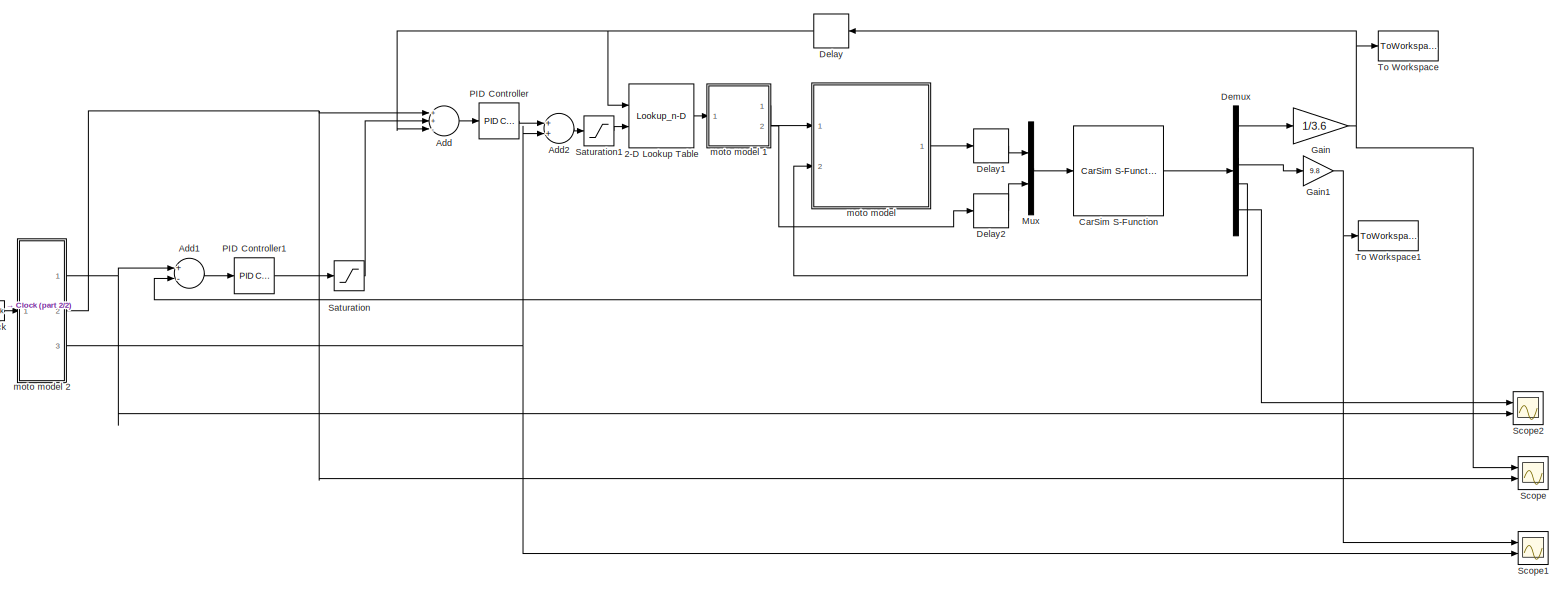
[diagram: root canvas - part 1/2, most of the canvas]
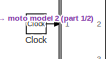
[diagram: root canvas - part 2/2, middle left region]
MODEL slx_35f0e6e5039c
KIND model
CONFIG AbsTol = auto
CONFIG FixedStep = auto
CONFIG MaxStep = auto
CONFIG MinStep = auto
CONFIG RelTol = 1e-3
CONFIG SampleTimeConstraint = Unconstrained
CONFIG Solver = VariableStepAuto
CONFIG SolverMode = Auto
CONFIG SolverName = VariableStepAuto
CONFIG StartTime = 0.0
CONFIG StopTime = 60
BLOCK [Lookup_n-D] 2-D Lookup Table
  BreakpointsForDimension1 = vubr
  BreakpointsForDimension2 = aubr
  InternalRulePriority = Speed
  Ports = [2, 1]
  RndMeth = Simplest
  Table = tablebr
BLOCK [Sum] Add
  InputSameDT = off
  Inputs = ++-
  OutDataTypeStr = Inherit: Inherit via internal rule
  Ports = [3, 1]
  SaturateOnIntegerOverflow = off
BLOCK [Sum] Add1
  InputSameDT = off
  Inputs = +-
  OutDataTypeStr = Inherit: Inherit via internal rule
  Ports = [2, 1]
  SaturateOnIntegerOverflow = off
BLOCK [Sum] Add2
  InputSameDT = off
  OutDataTypeStr = Inherit: Inherit via internal rule
  Ports = [2, 1]
  SaturateOnIntegerOverflow = off
BLOCK [Reference] CarSim S-Function  REF=Solver_SF/CarSim S-Function
  Ports = [1, 1]
  Priority = 1
  SourceBlock = Solver_SF/CarSim S-Function
  SourceType = Vehicle math model library
BLOCK [Clock] Clock
BLOCK [Delay] Delay
  DelayLength = 10
  InitialCondition = 0
  InputPortMap = u0
  Ports = [1, 1]
BLOCK [Delay] Delay1
  DelayLength = 100
  InitialCondition = 0
  InputPortMap = u0
  Ports = [1, 1]
  SampleTime = 0.0001
BLOCK [Delay] Delay2
  DelayLength = 100
  InitialCondition = 0
  InputPortMap = u0
  Ports = [1, 1]
  SampleTime = 0.0001
BLOCK [Demux] Demux
  DisplayOption = bar
  Ports = [1, 4]
BLOCK [Gain] Gain
  Gain = 1/3.6
  OutDataTypeStr = Inherit: Inherit via internal rule
  ParamDataTypeStr = Inherit: Inherit via internal rule
  SaturateOnIntegerOverflow = off
BLOCK [Gain] Gain1
  Gain = 9.8
  OutDataTypeStr = Inherit: Inherit via internal rule
  ParamDataTypeStr = Inherit: Inherit via internal rule
  SaturateOnIntegerOverflow = off
BLOCK [Mux] Mux
  DisplayOption = bar
  Inputs = 2
  Ports = [2, 1]
BLOCK [Reference] PID Controller  REF=simulink/Continuous/PID Controller
  Ports = [1, 1]
  SourceBlock = simulink/Continuous/PID Controller
  SourceType = PID 1dof
BLOCK [Reference] PID Controller1  REF=simulink/Continuous/PID Controller
  Ports = [1, 1]
  SourceBlock = simulink/Continuous/PID Controller
  SourceType = PID 1dof
BLOCK [Saturate] Saturation
  InputPortMap = u0
  LowerLimit = -10
  Ports = [1, 1]
  UpperLimit = 10
BLOCK [Saturate] Saturation1
  InputPortMap = u0
  LowerLimit = -8
  Ports = [1, 1]
  UpperLimit = 5
BLOCK [Scope] Scope
  NumInputPorts = 2
  Ports = [2]
  ScopeSpecificationString = Simulink.scopes.TimeScopeBlockCfg('CurrentConfiguration', extmgr.ConfigurationSet(extmgr.Configuration('Core','General UI',true),extmgr.Configuration('Core','Source UI',true),extmgr.Configuration('Sources','WiredSimulink',true),extmgr.Configuration('Visuals','Time Domain',true,'SerializedDisplays',{struct('MinYLimReal','23.66692','MaxYLimReal','24.90482','YLabelReal','','MinYLimMag','23.66692','Ma...<+1450ch>
BLOCK [Scope] Scope1
  NumInputPorts = 2
  Ports = [2]
  ScopeSpecificationString = Simulink.scopes.TimeScopeBlockCfg('CurrentConfiguration', extmgr.ConfigurationSet(extmgr.Configuration('Core','General UI',true),extmgr.Configuration('Core','Source UI',true),extmgr.Configuration('Sources','WiredSimulink',true,'DataLoggingVariableName','ScopeData1'),extmgr.Configuration('Visuals','Time Domain',true,'SerializedDisplays',{struct('MinYLimReal','-3.62695','MaxYLimReal','2.68756','YLab...<+1434ch>
BLOCK [Scope] Scope2
  NumInputPorts = 2
  Ports = [2]
  ScopeSpecificationString = Simulink.scopes.TimeScopeBlockCfg('CurrentConfiguration', extmgr.ConfigurationSet(extmgr.Configuration('Core','General UI',true),extmgr.Configuration('Core','Source UI',true),extmgr.Configuration('Sources','WiredSimulink',true,'DataLoggingVariableName','ScopeData1'),extmgr.Configuration('Visuals','Time Domain',true,'SerializedDisplays',{struct('MinYLimReal','-123.73724','MaxYLimReal','1113.63519',...<+1479ch>
BLOCK [ToWorkspace] To Workspace
  FixptAsFi = on
  MaxDataPoints = inf
  Ports = [1]
  SampleTime = -1
  Save2DSignal = 3-D array (concatenate along third dimension)
  SaveFormat = Timeseries
  VariableName = vx
BLOCK [ToWorkspace] To Workspace1
  FixptAsFi = on
  MaxDataPoints = inf
  Ports = [1]
  SampleTime = -1
  Save2DSignal = 3-D array (concatenate along third dimension)
  SaveFormat = Timeseries
  VariableName = ax
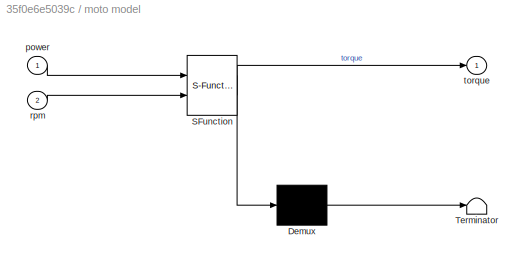
BLOCK [SubSystem] moto model 
  ErrorFcn = Stateflow.Translate.translate
  PermitHierarchicalResolution = ExplicitOnly
  Ports = [2, 1]
  RequestExecContextInheritance = off
  SFBlockType = MATLAB Function
  TreatAsAtomicUnit = on
  Variant = off
BLOCK [Demux] moto model / Demux 
  Outputs = 1
  Ports = [1, 1]
BLOCK [S-Function] moto model / SFunction 
  EnableBusSupport = on
  FunctionName = sf_sfun
  PortCounts = [2 2]
  Ports = [2, 2]
  SFunctionDeploymentMode = off
  Tag = Stateflow S-Function Zhongxiang_control 2
BLOCK [Terminator] moto model / Terminator 
BLOCK [Inport] moto model /power
  IconDisplay = Port number
BLOCK [Inport] moto model /rpm
  IconDisplay = Port number
  Port = 2
BLOCK [Outport] moto model /torque
  IconDisplay = Port number
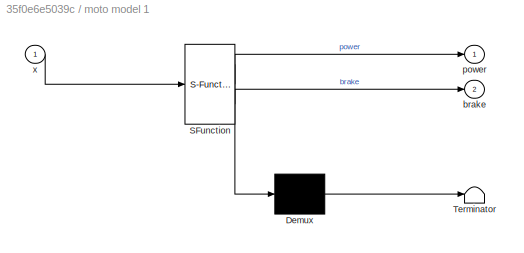
BLOCK [SubSystem] moto model 1
  ErrorFcn = Stateflow.Translate.translate
  PermitHierarchicalResolution = ExplicitOnly
  Ports = [1, 2]
  RequestExecContextInheritance = off
  SFBlockType = MATLAB Function
  TreatAsAtomicUnit = on
  Variant = off
BLOCK [Demux] moto model 1/ Demux 
  Outputs = 1
  Ports = [1, 1]
BLOCK [S-Function] moto model 1/ SFunction 
  EnableBusSupport = on
  FunctionName = sf_sfun
  PortCounts = [1 3]
  Ports = [1, 3]
  SFunctionDeploymentMode = off
  Tag = Stateflow S-Function Zhongxiang_control 1
BLOCK [Terminator] moto model 1/ Terminator 
BLOCK [Outport] moto model 1/brake
  IconDisplay = Port number
  Port = 2
BLOCK [Outport] moto model 1/power
  IconDisplay = Port number
BLOCK [Inport] moto model 1/x
  IconDisplay = Port number
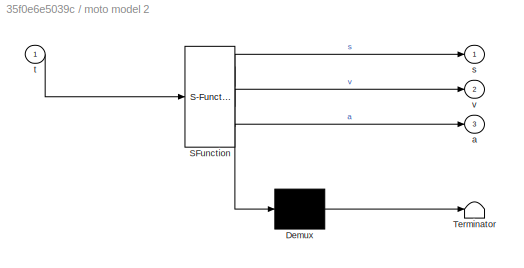
BLOCK [SubSystem] moto model 2
  ErrorFcn = Stateflow.Translate.translate
  PermitHierarchicalResolution = ExplicitOnly
  Ports = [1, 3]
  RequestExecContextInheritance = off
  SFBlockType = MATLAB Function
  TreatAsAtomicUnit = on
  Variant = off
BLOCK [Demux] moto model 2/ Demux 
  Outputs = 1
  Ports = [1, 1]
BLOCK [S-Function] moto model 2/ SFunction 
  EnableBusSupport = on
  FunctionName = sf_sfun
  PortCounts = [1 4]
  Ports = [1, 4]
  SFunctionDeploymentMode = off
  Tag = Stateflow S-Function Zhongxiang_control 3
BLOCK [Terminator] moto model 2/ Terminator 
BLOCK [Outport] moto model 2/a
  IconDisplay = Port number
  Port = 3
BLOCK [Outport] moto model 2/s
  IconDisplay = Port number
BLOCK [Inport] moto model 2/t
  IconDisplay = Port number
BLOCK [Outport] moto model 2/v
  IconDisplay = Port number
  Port = 2
LINE 2-D Lookup Table:1 -> moto model 1:1
LINE Add1:1 -> PID Controller1:1
LINE Add2:1 -> Saturation1:1
LINE Add:1 -> PID Controller:1
LINE CarSim S-Function:1 -> Demux:1
LINE Clock:1 -> moto model 2:1
LINE Delay1:1 -> Mux:1
LINE Delay2:1 -> Mux:2
NET Delay:1 -> 2-D Lookup Table:1, Add:3
LINE Demux:1 -> Gain:1
LINE Demux:2 -> Gain1:1
LINE Demux:3 -> moto model :2
NET Demux:4 -> Add1:2, Scope2:1
NET Gain1:1 -> Scope1:1, To Workspace1:1
NET Gain:1 -> Delay:1, Scope:1, To Workspace:1
LINE Mux:1 -> CarSim S-Function:1
LINE PID Controller1:1 -> Saturation:1
LINE PID Controller:1 -> Add2:1
LINE Saturation1:1 -> 2-D Lookup Table:2
LINE Saturation:1 -> Add:2
LINE moto model 1:1 -> moto model :1
LINE moto model 1:2 -> Delay2:1
NET moto model 2:1 -> Add1:1, Scope2:2
NET moto model 2:2 -> Add:1, Scope:2
NET moto model 2:3 -> Add2:2, Scope1:2
LINE moto model :1 -> Delay1:1
note: NET lines group one-source signal fan-out (src -> all destinations, sorted); 1:1 wires keep LINE
CHART moto model 1 states=1 transitions=1
  STATE_LABEL 'eML_blk_kernel()'
  STATE_LABEL 'SCRIPT:\nfunction [power,brake]=fcn(x)\nif (x>0)\n    power=x;\n    brake=0;\nelse\n    brake=-x;\n    power=0;\nend\n'
CHART moto model  states=1 transitions=1
  STATE_LABEL 'eML_blk_kernel()'
  STATE_LABEL 'SCRIPT:\nfunction torque=fcn(power,rpm)\nTmax=380*power;\nif (rpm<=4523)\n    torque=Tmax;\nelse\n    torque=(Tmax*4523)/rpm;\nend\nend\n'
CHART moto model 2 states=1 transitions=1
  STATE_LABEL 'eML_blk_kernel()'
  STATE_LABEL 'SCRIPT:\nfunction [s,v,a]=fcn(t)\n if t<10\n     s=0.1*t^3/3;\n     v=0.1*t^2;\n     a=0.2*t;\n else\n     a=2-0.1*(t-10);\n     v=2*t-0.05*(t-10)^2-10;\n     s=t^2-0.05*(t-10)^3/3-10*t+100/3;\n end     '
